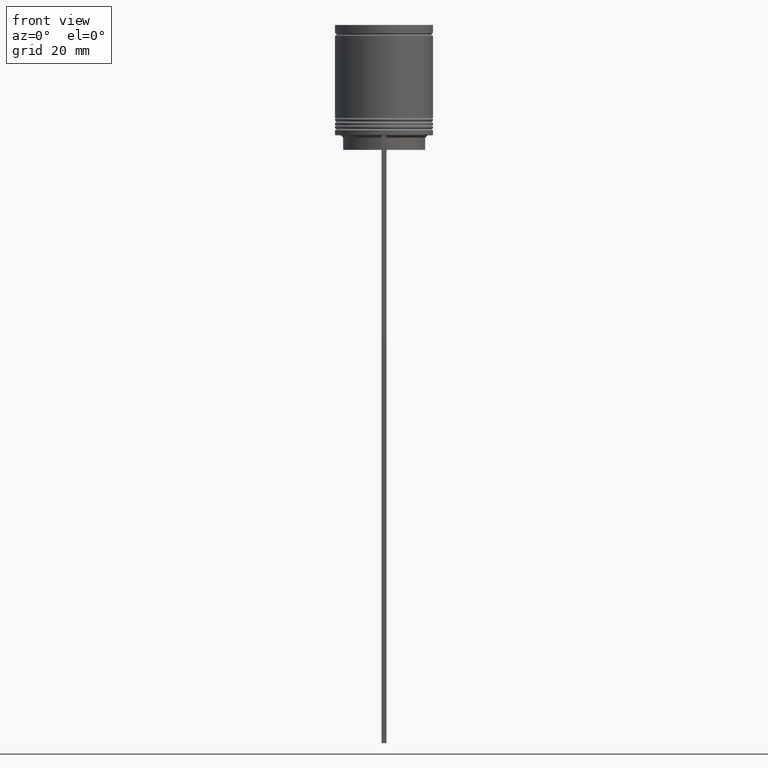
[diagram: clean part render]
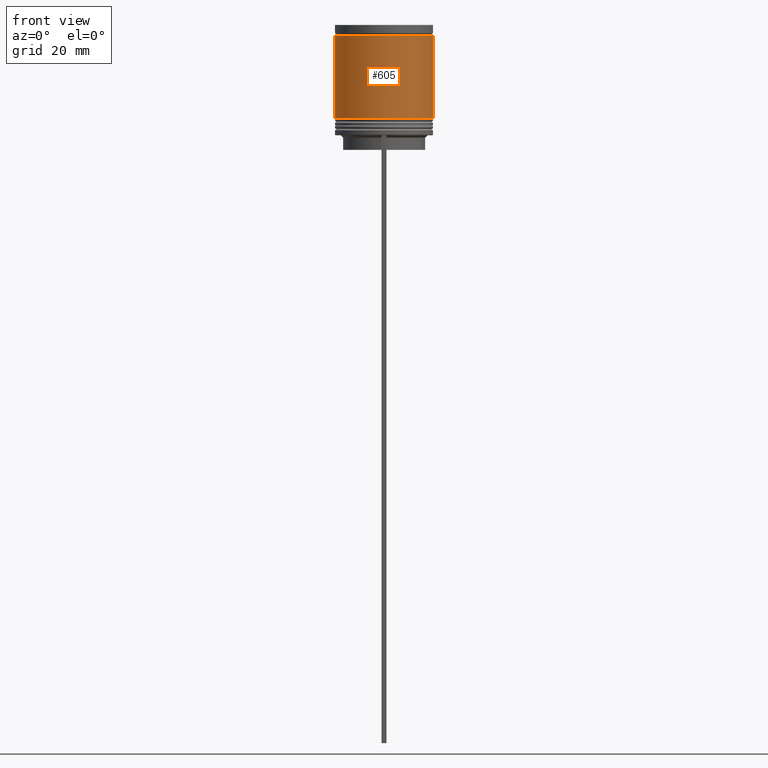
[diagram: same view with one face highlighted and labeled with its STEP entity id]
A machine part, front view. The second image highlights one B-rep face of the part: STEP entity #605.
In plain terms, the highlighted cylindrical surface (partial cylindrical patch) has radius 10 mm, axis along (-0, -0, 1).
Its self-contained STEP definition (entity closure, byte-faithful):
#77 = EDGE_LOOP ( 'NONE', ( #115, #560, #128, #252 ) ) ;
#115 = ORIENTED_EDGE ( 'NONE', *, *, #1927, .F. ) ;
#128 = ORIENTED_EDGE ( 'NONE', *, *, #1603, .T. ) ;
#134 = CARTESIAN_POINT ( 'NONE',  ( -9.999999999999998224, 1.224646799147353059E-15, 0.000000000000000000 ) ) ;
#146 = CARTESIAN_POINT ( 'NONE',  ( -10.00000000000000355, 1.224646799147353651E-15, -19.00000000000000000 ) ) ;
#185 = DIRECTION ( 'NONE',  ( -0.000000000000000000, -0.000000000000000000, 1.000000000000000000 ) ) ;
#241 = CIRCLE ( 'NONE', #1438, 9.999999999999996447 ) ;
#252 = ORIENTED_EDGE ( 'NONE', *, *, #1392, .F. ) ;
#276 = AXIS2_PLACEMENT_3D ( 'NONE', #1177, #1833, #326 ) ;
#326 = DIRECTION ( 'NONE',  ( 1.000000000000000000, 0.000000000000000000, 0.000000000000000000 ) ) ;
#355 = CYLINDRICAL_SURFACE ( 'NONE', #913, 9.999999999999998224 ) ;
#359 = CARTESIAN_POINT ( 'NONE',  ( 0.000000000000000000, 0.000000000000000000, -2.199999999999995293 ) ) ;
#411 = VERTEX_POINT ( 'NONE', #146 ) ;
#550 = VECTOR ( 'NONE', #1204, 1000.000000000000000 ) ;
#560 = ORIENTED_EDGE ( 'NONE', *, *, #1162, .T. ) ;
#605 = ADVANCED_FACE ( 'NONE', ( #1979 ), #355, .T. ) ;
#675 = DIRECTION ( 'NONE',  ( 1.000000000000000000, 0.000000000000000000, 0.000000000000000000 ) ) ;
#720 = LINE ( 'NONE', #1267, #550 ) ;
#771 = VERTEX_POINT ( 'NONE', #2008 ) ;
#772 = DIRECTION ( 'NONE',  ( -0.000000000000000000, -0.000000000000000000, 1.000000000000000000 ) ) ;
#806 = VERTEX_POINT ( 'NONE', #1245 ) ;
#819 = DIRECTION ( 'NONE',  ( 1.000000000000000000, 0.000000000000000000, 0.000000000000000000 ) ) ;
#913 = AXIS2_PLACEMENT_3D ( 'NONE', #1985, #185, #819 ) ;
#948 = CIRCLE ( 'NONE', #276, 10.00000000000000178 ) ;
#954 = VECTOR ( 'NONE', #772, 1000.000000000000000 ) ;
#994 = DIRECTION ( 'NONE',  ( -0.000000000000000000, -0.000000000000000000, 1.000000000000000000 ) ) ;
#1101 = LINE ( 'NONE', #134, #954 ) ;
#1162 = EDGE_CURVE ( 'NONE', #411, #771, #948, .T. ) ;
#1177 = CARTESIAN_POINT ( 'NONE',  ( 0.000000000000000000, 0.000000000000000000, -19.00000000000000000 ) ) ;
#1204 = DIRECTION ( 'NONE',  ( -0.000000000000000000, -0.000000000000000000, 1.000000000000000000 ) ) ;
#1240 = CARTESIAN_POINT ( 'NONE',  ( -9.999999999999996447, 1.224646799147352862E-15, -2.199999999999995293 ) ) ;
#1245 = CARTESIAN_POINT ( 'NONE',  ( 9.999999999999996447, 0.000000000000000000, -2.199999999999995293 ) ) ;
#1267 = CARTESIAN_POINT ( 'NONE',  ( 9.999999999999998224, 0.000000000000000000, 0.000000000000000000 ) ) ;
#1392 = EDGE_CURVE ( 'NONE', #1914, #806, #241, .T. ) ;
#1438 = AXIS2_PLACEMENT_3D ( 'NONE', #359, #994, #675 ) ;
#1603 = EDGE_CURVE ( 'NONE', #771, #806, #720, .T. ) ;
#1833 = DIRECTION ( 'NONE',  ( -0.000000000000000000, -0.000000000000000000, 1.000000000000000000 ) ) ;
#1914 = VERTEX_POINT ( 'NONE', #1240 ) ;
#1927 = EDGE_CURVE ( 'NONE', #411, #1914, #1101, .T. ) ;
#1979 = FACE_OUTER_BOUND ( 'NONE', #77, .T. ) ;
#1985 = CARTESIAN_POINT ( 'NONE',  ( 0.000000000000000000, 0.000000000000000000, 0.000000000000000000 ) ) ;
#2008 = CARTESIAN_POINT ( 'NONE',  ( 10.00000000000000178, 0.000000000000000000, -19.00000000000000000 ) ) ;